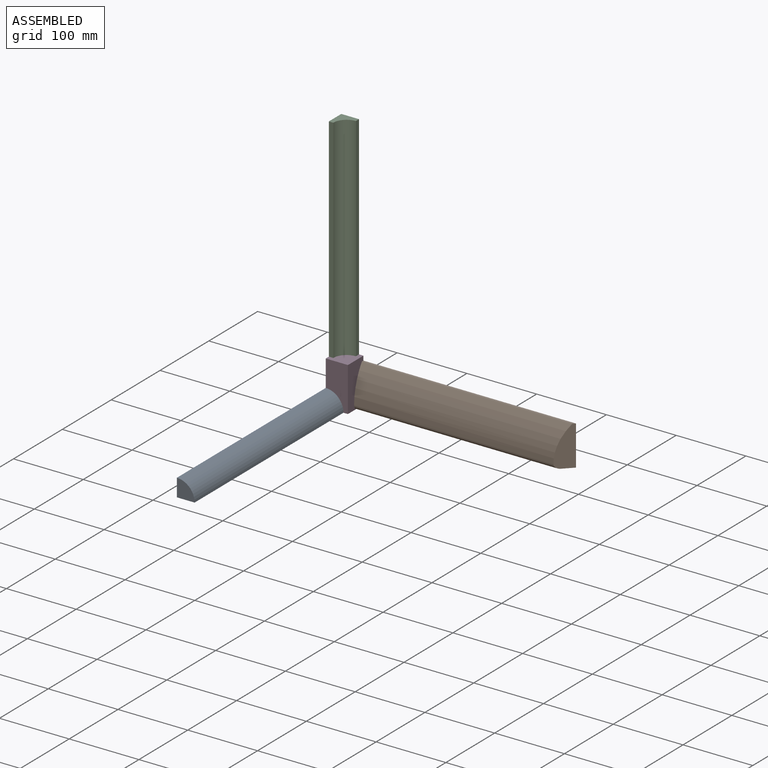
[diagram: assembled view]
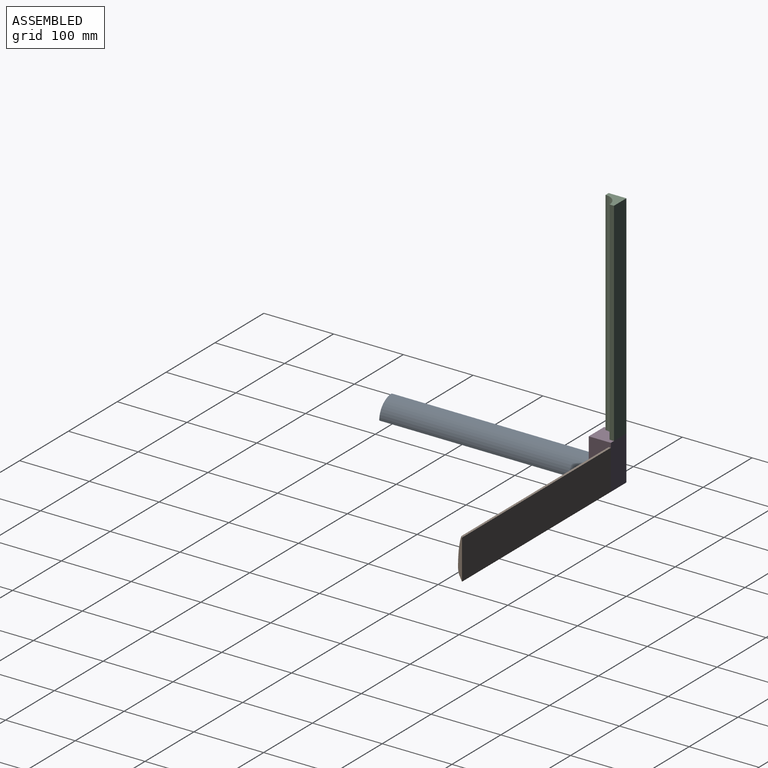
[diagram: assembled view, second angle]
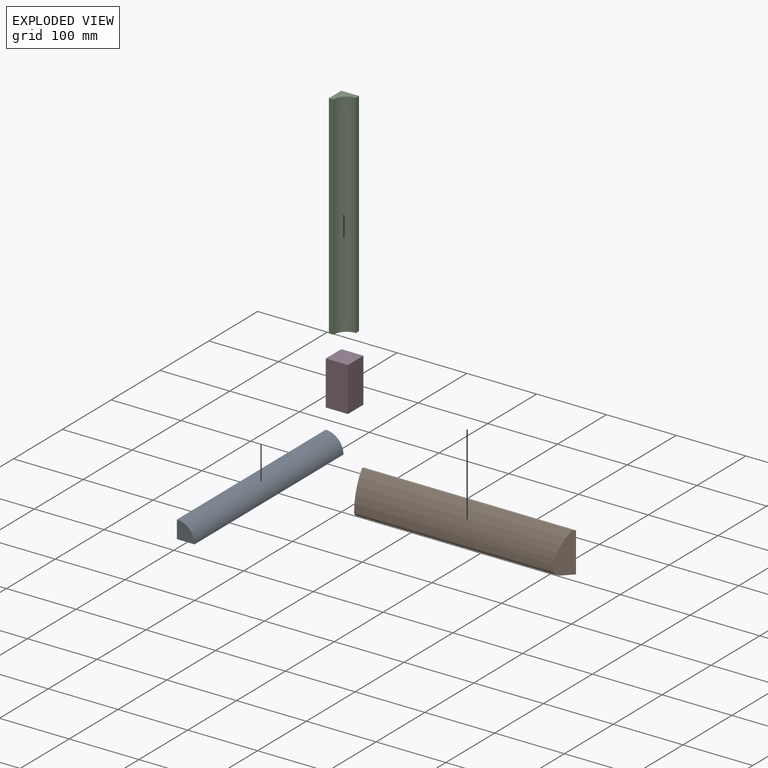
[diagram: exploded view]
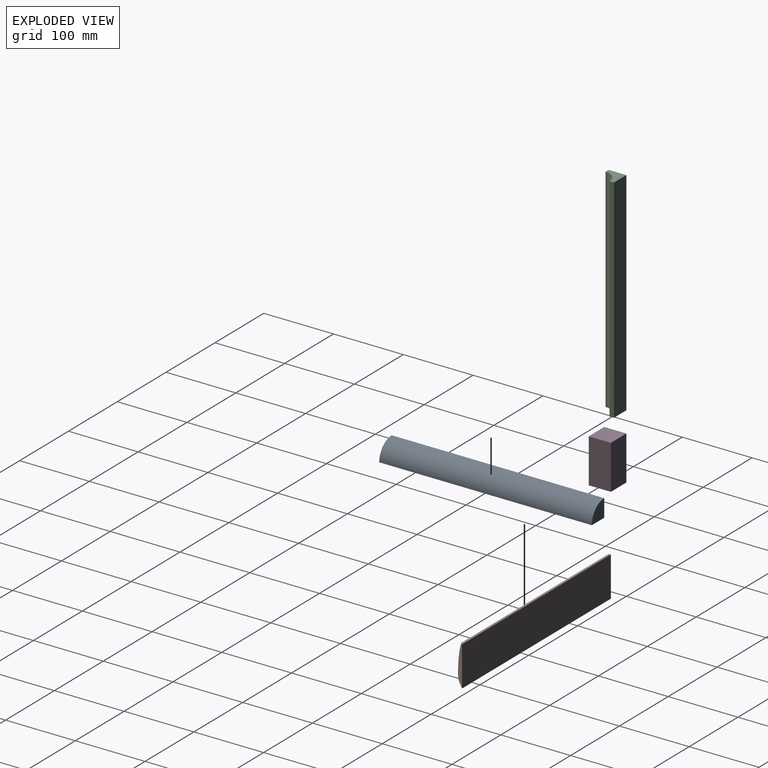
[diagram: exploded view, second angle]
ASSEMBLY  parts=4 mates=3
PART A: 5 faces, bbox 304.8x25.4x25.4 mm
  f0: plane 304.8x25.4mm, normal (0,1,0), area 7741.9mm2, adj f1,f2,f3,f4
  f1: cylinder r=25.4mm len=304.8mm, axis (-1,0,0), area 12161mm2, adj f0,f2,f3,f4
  f2: plane 304.8x25.4mm, normal (0,0,-1), area 7741.9mm2, adj f0,f1,f3,f4
  f3: plane 25.4x25.4mm, normal (1,0,0), area 506.7mm2, adj f0,f1,f2
  f4: plane 25.4x25.4mm, normal (-1,0,0), area 506.7mm2, adj f0,f1,f2
PART B: 7 faces, bbox 304.8x19.1x57.2 mm
  f0: plane 304.8x12.7mm, normal (0,0,-1), area 3790.3mm2, adj f3,f4,f5,f6
  f1: plane 304.8x3.18mm, normal (0,0,1), area 962.7mm2, adj f2,f4,f5,f6
  f2: cylinder r=88.9mm len=301.63mm, axis (-1,0,0), area 15736.4mm2, adj f1,f3,f5,f6
  f3: cylinder r=6.35mm len=292.1mm, axis (-1,0,0), area 2871.1mm2, adj f0,f2,f5,f6
  f4: plane 304.8x57.15mm, normal (0,1,0), area 17419.3mm2, adj f0,f1,f5,f6
  f5: plane 57.15x19.05mm, normal (-1,0,0), area 822.1mm2, adj f0,f1,f2,f3,f4
  f6: plane 57.15x19.05mm, normal (0.71,-0.71,0), area 1162.7mm2, adj f0,f1,f2,f3,f4
PART C: 7 faces, bbox 25.4x25.4x304.8 mm
  f0: plane 304.8x25.4mm, normal (1,0,0), area 7741.9mm2, adj f1,f4,f5,f6
  f1: plane 304.8x25.4mm, normal (0,1,0), area 7741.9mm2, adj f0,f2,f5,f6
  f2: plane 304.8x6.35mm, normal (-1,0,0), area 1935.5mm2, adj f1,f3,f5,f6
  f3: cylinder r=19.05mm len=304.8mm, axis (0,0,-1), area 9120.7mm2, adj f2,f4,f5,f6
  f4: plane 304.8x6.35mm, normal (0,-1,0), area 1935.5mm2, adj f0,f3,f5,f6
  f5: plane 25.4x25.4mm, normal (0,0,1), area 360.1mm2, adj f0,f1,f2,f3,f4
  f6: plane 25.4x25.4mm, normal (0,0,-1), area 360.1mm2, adj f0,f1,f2,f3,f4
PART D: 6 faces, bbox 31.8x31.8x63.5 mm
  f0: plane 63.5x31.75mm, normal (1,0,0), area 2016.1mm2, adj f1,f3,f4,f5
  f1: plane 63.5x31.75mm, normal (0,1,0), area 2016.1mm2, adj f0,f2,f4,f5
  f2: plane 63.5x31.75mm, normal (-1,0,0), area 2016.1mm2, adj f1,f3,f4,f5
  f3: plane 63.5x31.75mm, normal (0,-1,0), area 2016.1mm2, adj f0,f2,f4,f5
  f4: plane 31.75x31.75mm, normal (0,0,1), area 1008.1mm2, adj f0,f1,f2,f3
  f5: plane 31.75x31.75mm, normal (0,0,-1), area 1008.1mm2, adj f0,f1,f2,f3
PLACE A rot(axis=(0,0,1),90deg) t=(0,-184.15,0)mm
PLACE B t=(31.75,0,0)mm
PLACE C rot(axis=(0,0,1),90deg) t=(12.7,-12.7,63.5)mm
PLACE D t=(15.88,-15.88,0)mm
MATE fastened C.f6 <-> D.f4  axis (0,0,-1) through (0,0,63.5)mm
MATE fastened B.f0 <-> D.f5  axis (0,0,-1) through (31.75,0,0)mm
MATE fastened D.f5 <-> A.f2  axis (0,0,1) through (0,-31.75,0)mm
